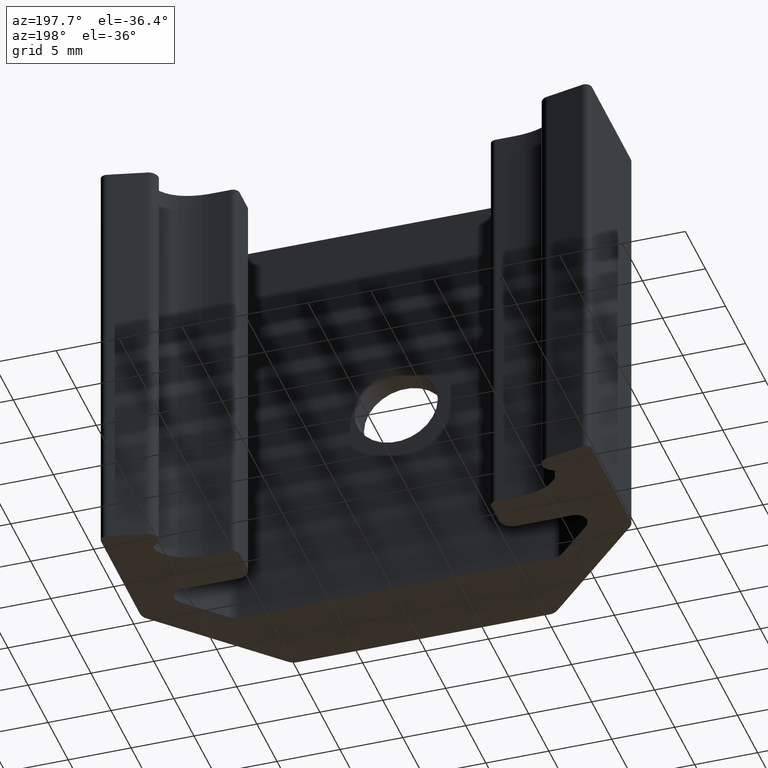
[diagram: clean part render]
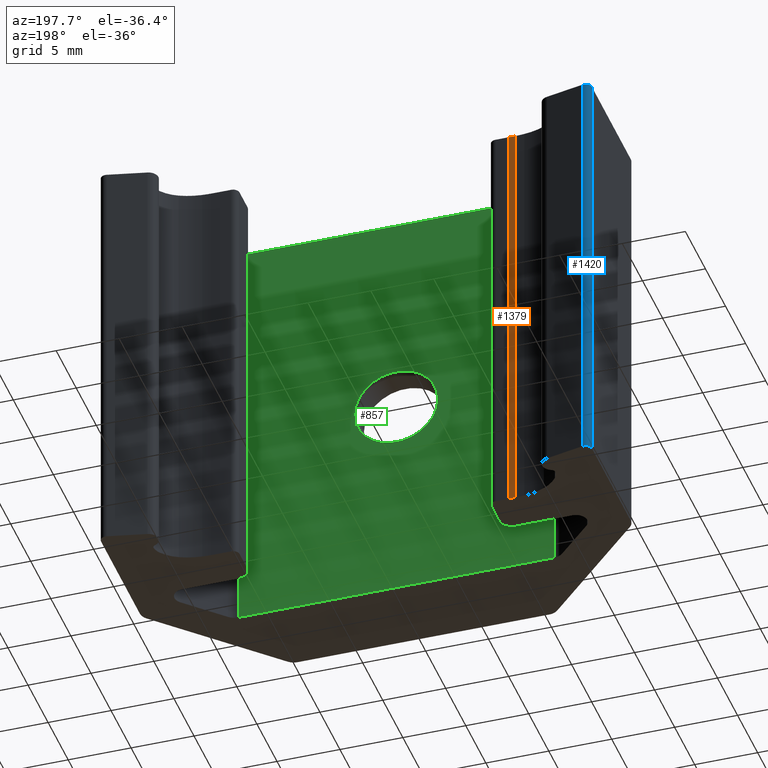
[diagram: same view with three faces highlighted in distinct colors, each labeled with its STEP entity id]
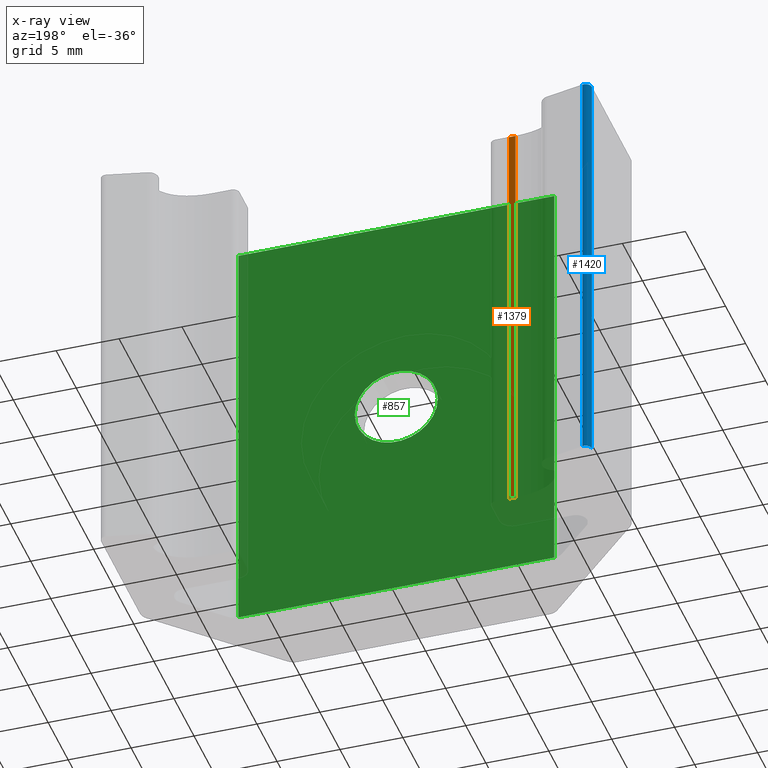
[diagram: x-ray of the same camera — body ghosted, the three highlighted faces saturated]
A machine part, auxiliary view with three faces highlighted in distinct colors.
The next image is the same camera in x-ray (body ghosted, the three faces saturated) — at least one of them is partly hidden behind the body in this view.
Their STEP definitions:

[orange] entity #1379 — the highlighted cylindrical surface (partial cylindrical patch) has radius 30.1 mm, axis along (0, 0, 1).
#5 = DIRECTION ( 'NONE',  ( 1.000000000000000000, 0.000000000000000000, 0.000000000000000000 ) ) ;
#50 = CARTESIAN_POINT ( 'NONE',  ( -11.56338247360000082, 5.453688639120484183, -16.99999999999994671 ) ) ;
#102 = CARTESIAN_POINT ( 'NONE',  ( -11.56338247360000082, 5.453688639120484183, 17.00000000000005684 ) ) ;
#109 = CARTESIAN_POINT ( 'NONE',  ( -12.08869990735999878, 5.458273014910481891, 17.00000000000005684 ) ) ;
#116 = EDGE_LOOP ( 'NONE', ( #813, #184, #672, #727 ) ) ;
#146 = CARTESIAN_POINT ( 'NONE',  ( -12.08869990735999878, 5.458273014910481891, 17.00000000000005684 ) ) ;
#184 = ORIENTED_EDGE ( 'NONE', *, *, #289, .T. ) ;
#185 = EDGE_CURVE ( 'NONE', #1618, #1256, #564, .T. ) ;
#289 = EDGE_CURVE ( 'NONE', #1556, #1256, #1516, .T. ) ;
#448 = AXIS2_PLACEMENT_3D ( 'NONE', #1486, #1204, #466 ) ;
#453 = VERTEX_POINT ( 'NONE', #146 ) ;
#465 = DIRECTION ( 'NONE',  ( 0.000000000000000000, 0.000000000000000000, 1.000000000000000000 ) ) ;
#466 = DIRECTION ( 'NONE',  ( 1.000000000000000000, 0.000000000000000000, 0.000000000000000000 ) ) ;
#503 = CARTESIAN_POINT ( 'NONE',  ( -11.56338247360000082, 5.453688639120484183, 17.00000000000005684 ) ) ;
#506 = CARTESIAN_POINT ( 'NONE',  ( -11.56338247360000082, 35.55368863912048027, 17.00000000000005684 ) ) ;
#564 = CIRCLE ( 'NONE', #691, 30.09999999999999787 ) ;
#575 = DIRECTION ( 'NONE',  ( 1.000000000000000000, 0.000000000000000000, 0.000000000000000000 ) ) ;
#616 = DIRECTION ( 'NONE',  ( 0.000000000000000000, 0.000000000000000000, -1.000000000000000000 ) ) ;
#642 = VECTOR ( 'NONE', #616, 1000.000000000000000 ) ;
#672 = ORIENTED_EDGE ( 'NONE', *, *, #185, .F. ) ;
#691 = AXIS2_PLACEMENT_3D ( 'NONE', #1572, #465, #575 ) ;
#727 = ORIENTED_EDGE ( 'NONE', *, *, #802, .F. ) ;
#802 = EDGE_CURVE ( 'NONE', #453, #1618, #856, .T. ) ;
#813 = ORIENTED_EDGE ( 'NONE', *, *, #1117, .T. ) ;
#856 = LINE ( 'NONE', #109, #642 ) ;
#991 = CIRCLE ( 'NONE', #1448, 30.09999999999999787 ) ;
#1117 = EDGE_CURVE ( 'NONE', #453, #1556, #991, .T. ) ;
#1204 = DIRECTION ( 'NONE',  ( 0.000000000000000000, 0.000000000000000000, 1.000000000000000000 ) ) ;
#1227 = FACE_OUTER_BOUND ( 'NONE', #116, .T. ) ;
#1244 = DIRECTION ( 'NONE',  ( 0.000000000000000000, 0.000000000000000000, -1.000000000000000000 ) ) ;
#1256 = VERTEX_POINT ( 'NONE', #50 ) ;
#1345 = CYLINDRICAL_SURFACE ( 'NONE', #448, 30.09999999999999787 ) ;
#1379 = ADVANCED_FACE ( 'NONE', ( #1227 ), #1345, .F. ) ;
#1389 = VECTOR ( 'NONE', #1244, 1000.000000000000000 ) ;
#1448 = AXIS2_PLACEMENT_3D ( 'NONE', #506, #1520, #5 ) ;
#1454 = CARTESIAN_POINT ( 'NONE',  ( -12.08869990735999878, 5.458273014910481891, -16.99999999999994671 ) ) ;
#1486 = CARTESIAN_POINT ( 'NONE',  ( -11.56338247360000082, 35.55368863912048027, 17.00000000000005684 ) ) ;
#1516 = LINE ( 'NONE', #503, #1389 ) ;
#1520 = DIRECTION ( 'NONE',  ( 0.000000000000000000, 0.000000000000000000, 1.000000000000000000 ) ) ;
#1556 = VERTEX_POINT ( 'NONE', #102 ) ;
#1572 = CARTESIAN_POINT ( 'NONE',  ( -11.56338247360000082, 35.55368863912048027, -16.99999999999994671 ) ) ;
#1618 = VERTEX_POINT ( 'NONE', #1454 ) ;

[blue] entity #1420 — the highlighted cylindrical surface (edge-blend (fillet) strip) has radius 0.5 mm, axis along (0, 0, 1).
#9 = EDGE_CURVE ( 'NONE', #702, #1320, #927, .T. ) ;
#42 = LINE ( 'NONE', #407, #1392 ) ;
#65 = AXIS2_PLACEMENT_3D ( 'NONE', #155, #1433, #402 ) ;
#74 = ORIENTED_EDGE ( 'NONE', *, *, #381, .F. ) ;
#89 = CIRCLE ( 'NONE', #170, 0.5000000000000004441 ) ;
#114 = VERTEX_POINT ( 'NONE', #1352 ) ;
#153 = CARTESIAN_POINT ( 'NONE',  ( -19.00447861306999897, 9.658058777570477815, 17.00000000000005684 ) ) ;
#155 = CARTESIAN_POINT ( 'NONE',  ( -19.00447861306999897, 9.658058777570477815, -16.99999999999994671 ) ) ;
#158 = ORIENTED_EDGE ( 'NONE', *, *, #9, .T. ) ;
#165 = CARTESIAN_POINT ( 'NONE',  ( -19.50447861306999897, 9.658058777570477815, 17.00000000000005684 ) ) ;
#170 = AXIS2_PLACEMENT_3D ( 'NONE', #153, #785, #772 ) ;
#199 = CARTESIAN_POINT ( 'NONE',  ( -19.50447861306999897, 9.658058777570477815, 17.00000000000005684 ) ) ;
#223 = CARTESIAN_POINT ( 'NONE',  ( -19.00447861306999897, 9.658058777570477815, 17.00000000000005684 ) ) ;
#317 = VECTOR ( 'NONE', #696, 1000.000000000000000 ) ;
#381 = EDGE_CURVE ( 'NONE', #114, #398, #89, .T. ) ;
#398 = VERTEX_POINT ( 'NONE', #165 ) ;
#402 = DIRECTION ( 'NONE',  ( 1.000000000000000000, 0.000000000000000000, 0.000000000000000000 ) ) ;
#407 = CARTESIAN_POINT ( 'NONE',  ( -18.89811340917999871, 10.14661424361047715, 17.00000000000005684 ) ) ;
#473 = EDGE_CURVE ( 'NONE', #114, #702, #42, .T. ) ;
#475 = AXIS2_PLACEMENT_3D ( 'NONE', #223, #1579, #700 ) ;
#477 = CYLINDRICAL_SURFACE ( 'NONE', #475, 0.5000000000000004441 ) ;
#696 = DIRECTION ( 'NONE',  ( 0.000000000000000000, 0.000000000000000000, -1.000000000000000000 ) ) ;
#700 = DIRECTION ( 'NONE',  ( 1.000000000000000000, 0.000000000000000000, 0.000000000000000000 ) ) ;
#702 = VERTEX_POINT ( 'NONE', #1119 ) ;
#738 = EDGE_LOOP ( 'NONE', ( #1034, #158, #1183, #74 ) ) ;
#772 = DIRECTION ( 'NONE',  ( 1.000000000000000000, 0.000000000000000000, 0.000000000000000000 ) ) ;
#785 = DIRECTION ( 'NONE',  ( 0.000000000000000000, 0.000000000000000000, 1.000000000000000000 ) ) ;
#927 = CIRCLE ( 'NONE', #65, 0.5000000000000004441 ) ;
#970 = LINE ( 'NONE', #199, #317 ) ;
#1032 = EDGE_CURVE ( 'NONE', #398, #1320, #970, .T. ) ;
#1034 = ORIENTED_EDGE ( 'NONE', *, *, #473, .T. ) ;
#1088 = FACE_OUTER_BOUND ( 'NONE', #738, .T. ) ;
#1119 = CARTESIAN_POINT ( 'NONE',  ( -18.89811340917999871, 10.14661424361047715, -16.99999999999994671 ) ) ;
#1179 = CARTESIAN_POINT ( 'NONE',  ( -19.50447861306999897, 9.658058777570477815, -16.99999999999994671 ) ) ;
#1183 = ORIENTED_EDGE ( 'NONE', *, *, #1032, .F. ) ;
#1320 = VERTEX_POINT ( 'NONE', #1179 ) ;
#1352 = CARTESIAN_POINT ( 'NONE',  ( -18.89811340917999871, 10.14661424361047715, 17.00000000000005684 ) ) ;
#1392 = VECTOR ( 'NONE', #1537, 1000.000000000000000 ) ;
#1420 = ADVANCED_FACE ( 'NONE', ( #1088 ), #477, .T. ) ;
#1433 = DIRECTION ( 'NONE',  ( 0.000000000000000000, 0.000000000000000000, 1.000000000000000000 ) ) ;
#1537 = DIRECTION ( 'NONE',  ( 0.000000000000000000, 0.000000000000000000, -1.000000000000000000 ) ) ;
#1579 = DIRECTION ( 'NONE',  ( 0.000000000000000000, 0.000000000000000000, 1.000000000000000000 ) ) ;

[green] entity #857 — the highlighted planar face has unit normal (0, 1, -0).
#2 = CARTESIAN_POINT ( 'NONE',  ( -12.55735931287000007, -2.746327330299516589, 17.00000000000005684 ) ) ;
#47 = ORIENTED_EDGE ( 'NONE', *, *, #941, .T. ) ;
#115 = AXIS2_PLACEMENT_3D ( 'NONE', #1410, #1319, #637 ) ;
#189 = CARTESIAN_POINT ( 'NONE',  ( 12.55735931287300033, -2.746327330299516589, -16.99999999999994671 ) ) ;
#192 = CARTESIAN_POINT ( 'NONE',  ( 10.00000000000000000, -2.746327330299516589, 17.00000000000005684 ) ) ;
#226 = AXIS2_PLACEMENT_3D ( 'NONE', #1525, #400, #1284 ) ;
#247 = EDGE_LOOP ( 'NONE', ( #47, #621, #585, #488 ) ) ;
#255 = VECTOR ( 'NONE', #1615, 1000.000000000000000 ) ;
#297 = EDGE_CURVE ( 'NONE', #996, #1354, #1386, .T. ) ;
#304 = VERTEX_POINT ( 'NONE', #2 ) ;
#333 = CARTESIAN_POINT ( 'NONE',  ( -12.55735931287000007, -2.746327330299516589, -16.99999999999994671 ) ) ;
#345 = VECTOR ( 'NONE', #377, 1000.000000000000000 ) ;
#359 = LINE ( 'NONE', #1370, #592 ) ;
#377 = DIRECTION ( 'NONE',  ( 1.000000000000000000, 0.000000000000000000, -1.900000000000000059E-16 ) ) ;
#400 = DIRECTION ( 'NONE',  ( 5.699999999999999930E-16, -1.000000000000000000, 7.799999999999999541E-16 ) ) ;
#488 = ORIENTED_EDGE ( 'NONE', *, *, #679, .F. ) ;
#507 = EDGE_LOOP ( 'NONE', ( #739 ) ) ;
#515 = CIRCLE ( 'NONE', #226, 3.299999999999999822 ) ;
#585 = ORIENTED_EDGE ( 'NONE', *, *, #297, .F. ) ;
#592 = VECTOR ( 'NONE', #846, 1000.000000000000000 ) ;
#621 = ORIENTED_EDGE ( 'NONE', *, *, #796, .T. ) ;
#637 = DIRECTION ( 'NONE',  ( 0.000000000000000000, -9.600000000000000194E-16, -1.000000000000000000 ) ) ;
#650 = DIRECTION ( 'NONE',  ( 1.000000000000000000, 0.000000000000000000, 0.000000000000000000 ) ) ;
#679 = EDGE_CURVE ( 'NONE', #304, #996, #1251, .T. ) ;
#733 = CARTESIAN_POINT ( 'NONE',  ( -5.000000005043999884, -2.746327330299516589, -16.99999999999994671 ) ) ;
#739 = ORIENTED_EDGE ( 'NONE', *, *, #889, .T. ) ;
#796 = EDGE_CURVE ( 'NONE', #1421, #1354, #359, .T. ) ;
#846 = DIRECTION ( 'NONE',  ( -7.000000000000000347E-17, -1.580000000000000036E-15, -1.000000000000000000 ) ) ;
#855 = CARTESIAN_POINT ( 'NONE',  ( 3.300000000000035794, -2.746327330299514813, 5.551115123125782702E-14 ) ) ;
#857 = ADVANCED_FACE ( 'NONE', ( #1020, #1145 ), #1403, .T. ) ;
#889 = EDGE_CURVE ( 'NONE', #1490, #1490, #515, .T. ) ;
#941 = EDGE_CURVE ( 'NONE', #304, #1421, #1437, .T. ) ;
#996 = VERTEX_POINT ( 'NONE', #333 ) ;
#1020 = FACE_BOUND ( 'NONE', #507, .T. ) ;
#1145 = FACE_OUTER_BOUND ( 'NONE', #247, .T. ) ;
#1251 = LINE ( 'NONE', #1606, #255 ) ;
#1284 = DIRECTION ( 'NONE',  ( 1.000000000000000000, 5.256737805990325036E-16, 0.000000000000000000 ) ) ;
#1319 = DIRECTION ( 'NONE',  ( 0.000000000000000000, 1.000000000000000000, -9.600000000000000194E-16 ) ) ;
#1354 = VERTEX_POINT ( 'NONE', #189 ) ;
#1370 = CARTESIAN_POINT ( 'NONE',  ( 12.55735931287300033, -2.746327330299516589, 17.00000000000005684 ) ) ;
#1386 = LINE ( 'NONE', #733, #345 ) ;
#1403 = PLANE ( 'NONE',  #115 ) ;
#1410 = CARTESIAN_POINT ( 'NONE',  ( 1.498380003968069331E-12, -2.746327330299516589, 5.551115123125782702E-14 ) ) ;
#1421 = VERTEX_POINT ( 'NONE', #1457 ) ;
#1437 = LINE ( 'NONE', #192, #1599 ) ;
#1457 = CARTESIAN_POINT ( 'NONE',  ( 12.55735931287300033, -2.746327330299516589, 17.00000000000005684 ) ) ;
#1490 = VERTEX_POINT ( 'NONE', #855 ) ;
#1525 = CARTESIAN_POINT ( 'NONE',  ( 3.613000396806938980E-14, -2.746327330299516589, 5.551115123125782702E-14 ) ) ;
#1599 = VECTOR ( 'NONE', #650, 1000.000000000000000 ) ;
#1606 = CARTESIAN_POINT ( 'NONE',  ( -12.55735931287000007, -2.746327330299516589, 17.00000000000005684 ) ) ;
#1615 = DIRECTION ( 'NONE',  ( -7.000000000000000347E-17, -1.580000000000000036E-15, -1.000000000000000000 ) ) ;